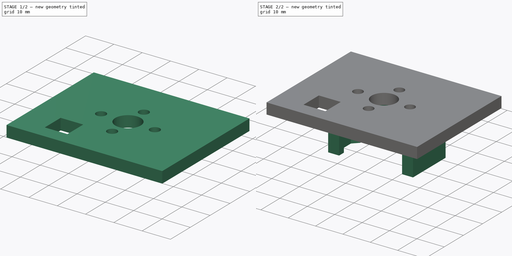
[diagram: build sequence overview — one tinted view per stage of 2, left to right]
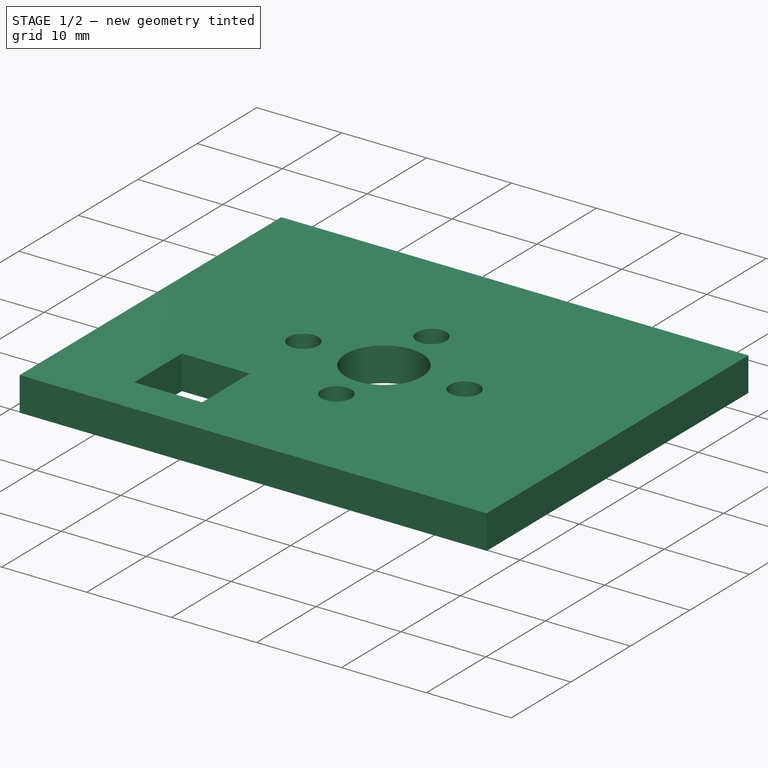
[diagram: stage 1 of 2 — iso view after this stage's code; geometry added in this stage tinted green]
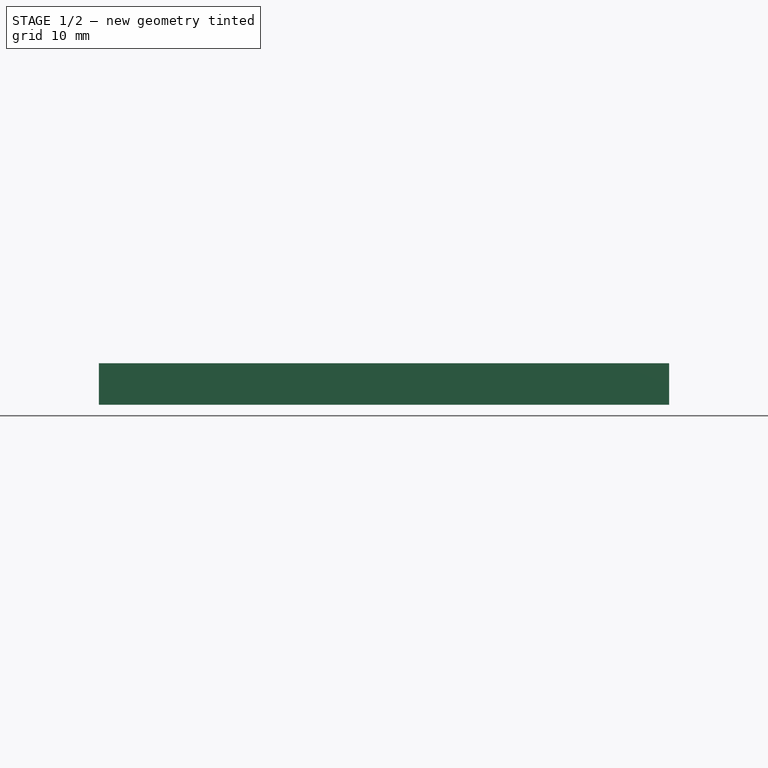
[diagram: stage 1 of 2 — front view after this stage's code; geometry added in this stage tinted green]
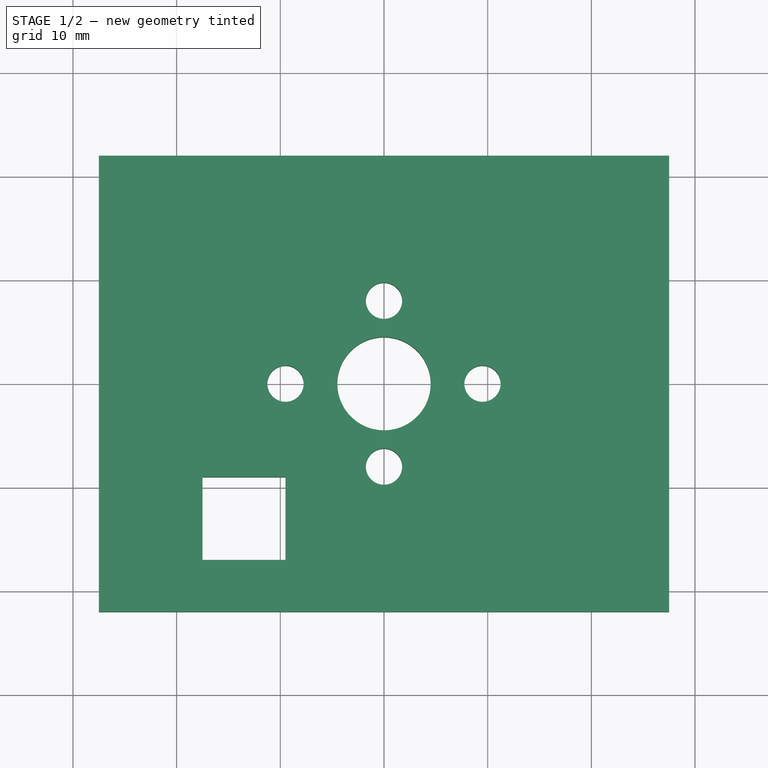
[diagram: stage 1 of 2 — top view after this stage's code; geometry added in this stage tinted green]
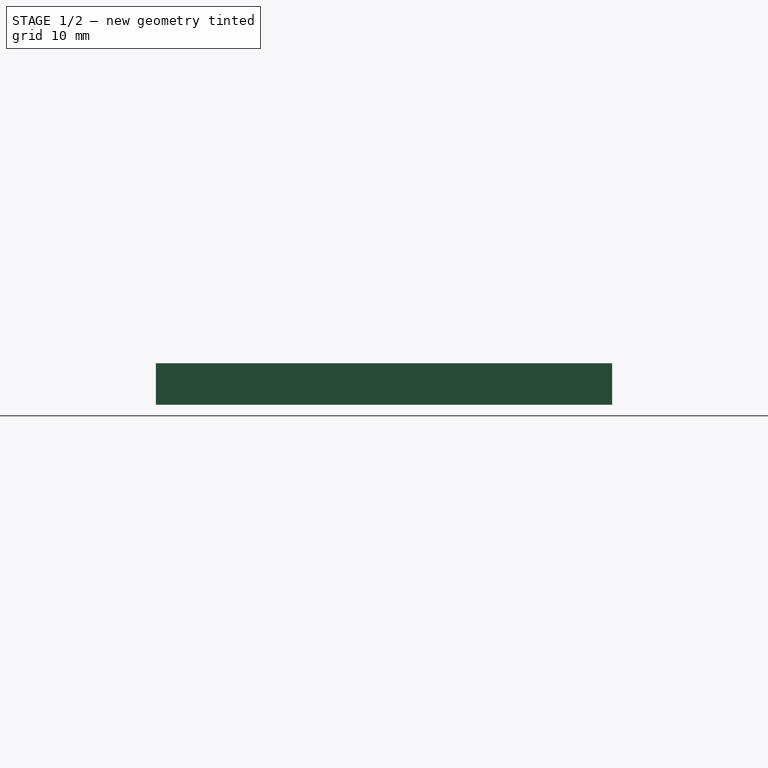
[diagram: stage 1 of 2 — right view after this stage's code; geometry added in this stage tinted green]
FCSTD DOCUMENT  (FreeCAD 0.19R)
Label: motor_mount
License: All rights reserved
LicenseURL: http://en.wikipedia.org/wiki/All_rights_reserved
objects: Sketcher::SketchObject×2, PartDesign::Pad×2, PartDesign::Body×1
note: 7 computed .brp shape members not serialized (recipe doc carries the construction recipe); baked Part::Feature solids carry a one-line shape summary decoded from their .brp

FEATURE [Sketcher::SketchObject] Sketch
  FullyConstrained = true
  MapMode = 5
  Support = -> [XY_Plane]
  sketch-geometry (13):
    g0: LineSegment StartX=-27.5 StartY=22 StartZ=0 EndX=27.5 EndY=22 EndZ=0
    g1: LineSegment StartX=27.5 StartY=22 StartZ=0 EndX=27.5 EndY=-22 EndZ=0
    g2: LineSegment StartX=27.5 StartY=-22 StartZ=0 EndX=-27.5 EndY=-22 EndZ=0
    g3: LineSegment StartX=-27.5 StartY=-22 StartZ=0 EndX=-27.5 EndY=22 EndZ=0
    g4: LineSegment StartX=-17.5 StartY=-9 StartZ=0 EndX=-9.5 EndY=-9 EndZ=0
    g5: LineSegment StartX=-9.5 StartY=-9 StartZ=0 EndX=-9.5 EndY=-17 EndZ=0
    g6: LineSegment StartX=-9.5 StartY=-17 StartZ=0 EndX=-17.5 EndY=-17 EndZ=0
    g7: LineSegment StartX=-17.5 StartY=-17 StartZ=0 EndX=-17.5 EndY=-9 EndZ=0
    g8: Circle CenterX=-9.5 CenterY=0 CenterZ=0 NormalX=0 NormalY=0 NormalZ=1 AngleXU=0 Radius=1.75
    g9: Circle CenterX=0 CenterY=8 CenterZ=0 NormalX=0 NormalY=0 NormalZ=1 AngleXU=0 Radius=1.75
    g10: Circle CenterX=9.5 CenterY=0 CenterZ=0 NormalX=0 NormalY=0 NormalZ=1 AngleXU=0 Radius=1.75
    g11: Circle CenterX=0 CenterY=-8 CenterZ=0 NormalX=0 NormalY=0 NormalZ=1 AngleXU=0 Radius=1.75
    g12: Circle CenterX=0 CenterY=0 CenterZ=0 NormalX=0 NormalY=0 NormalZ=1 AngleXU=0 Radius=4.5
  constraints (34):
    c: Coincident(g0,g1)
    c: Coincident(g1,g2)
    c: Coincident(g2,g3)
    c: Coincident(g3,g0)
    c: Horizontal(g0)
    c: Vertical(g3)
    c: DistanceY(g1,g1) = 44
    c: DistanceX(g0,g0) = 55
    c: Symmetric(g2,g1,g-2)
    c: Symmetric(g1,g0,g-1)
    c: Coincident(g4,g5)
    c: Coincident(g5,g6)
    c: Coincident(g6,g7)
    c: Coincident(g7,g4)
    c: Horizontal(g4)
    c: Horizontal(g6)
    c: Vertical(g5)
    c: Vertical(g7)
    c: DistanceX(g4,g4) = 8
    c: DistanceY(g5,g5) = 8
    c: DistanceX(g2,g6) = 10
    c: DistanceY(g2,g6) = 5
    c: Equal(g11,g10)
    c: Equal(g10,g9)
    c: Equal(g9,g8)
    c: Diameter(g10) = 3.5
    c: PointOnObject(g11,g-2)
    c: PointOnObject(g10,g-1)
    c: Symmetric(g8,g10,g-2)
    c: Symmetric(g11,g9,g-1)
    c: DistanceX(g8,g10) = 19
    c: DistanceY(g11,g9) = 16
    c: Coincident(g12,g-1)
    c: Diameter(g12) = 9
FEATURE [PartDesign::Pad] Pad
  Direction = (1,1,1)
  Length = 4
  Length2 = 100
  Profile = -> Sketch
  Type = 0
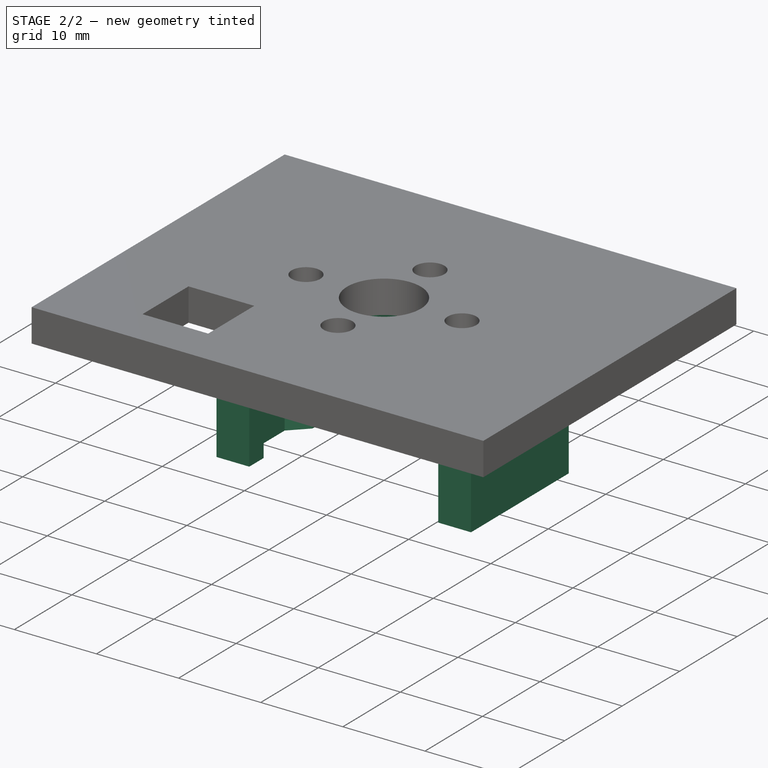
[diagram: stage 2 of 2 — iso view after this stage's code; geometry added in this stage tinted green]
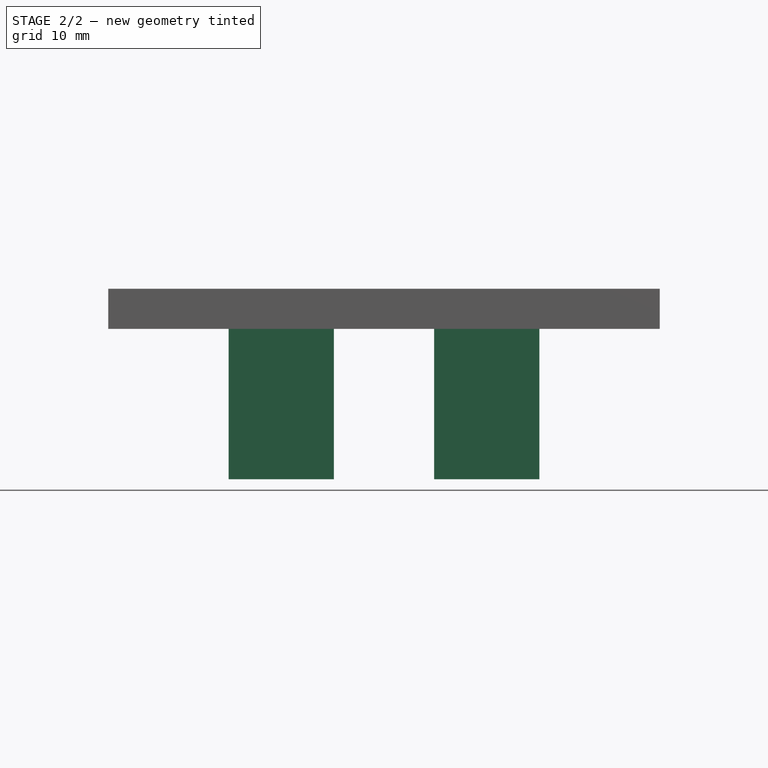
[diagram: stage 2 of 2 — front view after this stage's code; geometry added in this stage tinted green]
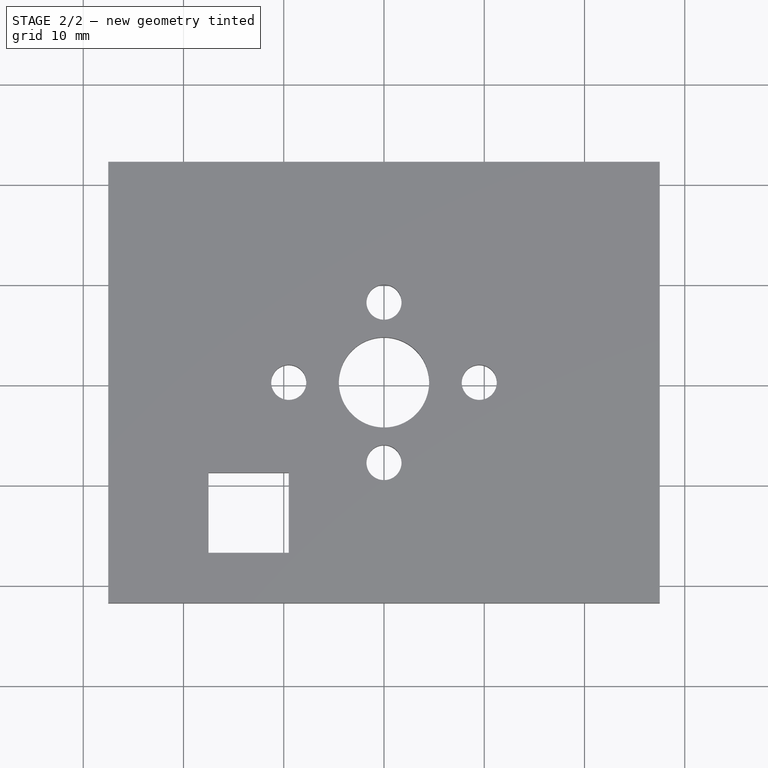
[diagram: stage 2 of 2 — top view after this stage's code; geometry added in this stage tinted green]
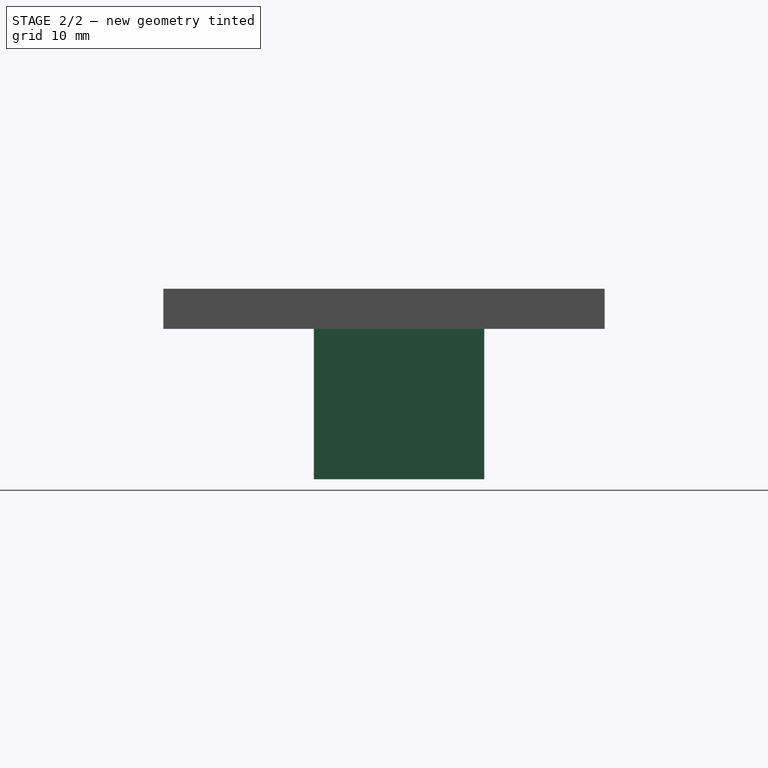
[diagram: stage 2 of 2 — right view after this stage's code; geometry added in this stage tinted green]
FEATURE [Sketcher::SketchObject] Sketch001
  ExternalGeometry = -> [Pad]
  FullyConstrained = true
  MapMode = 5
  Placement = pos=(0,0,0) rot=(1,0,0;3.14159rad)
  Support = -> [Pad]
  sketch-geometry (20):
    g0: LineSegment StartX=-15.5 StartY=7 StartZ=0 EndX=-11.5 EndY=7 EndZ=0
    g1: LineSegment StartX=11.5 StartY=7 StartZ=0 EndX=15.5 EndY=7 EndZ=0
    g2: LineSegment StartX=15.5 StartY=7 StartZ=0 EndX=15.5 EndY=-10 EndZ=0
    g3: LineSegment StartX=-15.5 StartY=-10 StartZ=0 EndX=-15.5 EndY=7 EndZ=0
    g4: LineSegment StartX=11.5 StartY=7 StartZ=0 EndX=11.5 EndY=4.5 EndZ=0
    g5: LineSegment StartX=11.5 StartY=4.5 StartZ=0 EndX=13.5 EndY=2.5 EndZ=0
    g6: LineSegment StartX=13.5 StartY=2.5 StartZ=0 EndX=13.5 EndY=-2 EndZ=0
    g7: LineSegment StartX=13.5 StartY=-2 StartZ=0 EndX=11.5 EndY=-4 EndZ=0
    g8: LineSegment StartX=11.5 StartY=-4 StartZ=0 EndX=11.5 EndY=-6 EndZ=0
    g9: LineSegment StartX=11.5 StartY=-6 StartZ=0 EndX=5 EndY=-6 EndZ=0
    g10: LineSegment StartX=5 StartY=-6 StartZ=0 EndX=5 EndY=-10 EndZ=0
    g11: LineSegment StartX=5 StartY=-10 StartZ=0 EndX=15.5 EndY=-10 EndZ=0
    g12: LineSegment StartX=-11.5 StartY=7 StartZ=0 EndX=-11.5 EndY=4.5 EndZ=0
    g13: LineSegment StartX=-11.5 StartY=4.5 StartZ=0 EndX=-13.5 EndY=2.5 EndZ=0
    g14: LineSegment StartX=-13.5 StartY=2.5 StartZ=0 EndX=-13.5 EndY=-2 EndZ=0
    g15: LineSegment StartX=-13.5 StartY=-2 StartZ=0 EndX=-11.5 EndY=-4 EndZ=0
    g16: LineSegment StartX=-11.5 StartY=-4 StartZ=0 EndX=-11.5 EndY=-6 EndZ=0
    g17: LineSegment StartX=-11.5 StartY=-6 StartZ=0 EndX=-5 EndY=-6 EndZ=0
    g18: LineSegment StartX=-5 StartY=-6 StartZ=0 EndX=-5 EndY=-10 EndZ=0
    g19: LineSegment StartX=-5 StartY=-10 StartZ=0 EndX=-15.5 EndY=-10 EndZ=0
  constraints (55):
    c: Coincident(g1,g2)
    c: Coincident(g3,g0)
    c: Vertical(g3)
    c: Horizontal(g0)
    c: Symmetric(g3,g2,g-2)
    c: DistanceY(g-3,g2) = 12
    c: DistanceX(g2,g-3) = 12
    c: Horizontal(g1)
    c: Equal(g1,g0)
    c: DistanceX(g1,g1) = 4
    c: Coincident(g1,g4)
    c: Vertical(g4)
    c: Coincident(g4,g5)
    c: Coincident(g5,g6)
    c: Vertical(g6)
    c: Coincident(g6,g7)
    c: Coincident(g7,g8)
    c: Coincident(g8,g9)
    c: Horizontal(g9)
    c: Coincident(g9,g10)
    c: Vertical(g10)
    c: Coincident(g10,g11)
    c: Coincident(g11,g2)
    c: Horizontal(g11)
    c: Coincident(g0,g12)
    c: Vertical(g12)
    c: Coincident(g12,g13)
    c: Coincident(g13,g14)
    c: Vertical(g14)
    c: Coincident(g14,g15)
    c: Coincident(g15,g16)
    c: Coincident(g16,g17)
    c: Horizontal(g17)
    c: Coincident(g17,g18)
    c: Vertical(g18)
    c: Coincident(g18,g19)
    c: Coincident(g19,g3)
    c: Horizontal(g19)
    c: Equal(g12,g4)
    c: Equal(g6,g14)
    c: Symmetric(g13,g5,g-2)
    c: Symmetric(g0,g1,g-2)
    c: DistanceY(g3,g3) = 17
    c: Symmetric(g15,g7,g-2)
    c: Vertical(g8)
    c: Vertical(g16)
    c: Symmetric(g17,g9,g-2)
    c: DistanceY(g18,g18) = 4
    c: DistanceX(g18,g10) = 10
    c: DistanceX(g14,g6) = 27
    c: DistanceY(g12,g12) = 2.5
    c: Angle(g13,g-2) = 0.785398
    c: Angle(g-2,g15) = 0.785398
    c: DistanceY(g14,g14) = 4.5
    c: DistanceX(g3,g16) = 4
FEATURE [PartDesign::Pad] Pad001
  BaseFeature = -> Pad
  Direction = (1,1,1)
  Length = 15
  Length2 = 100
  Profile = -> Sketch001
  Type = 0
FEATURE [PartDesign::Body] Body
  Group = -> [Sketch,Pad,Sketch001,Pad001]
  Origin = -> Origin
  Tip = -> Pad001
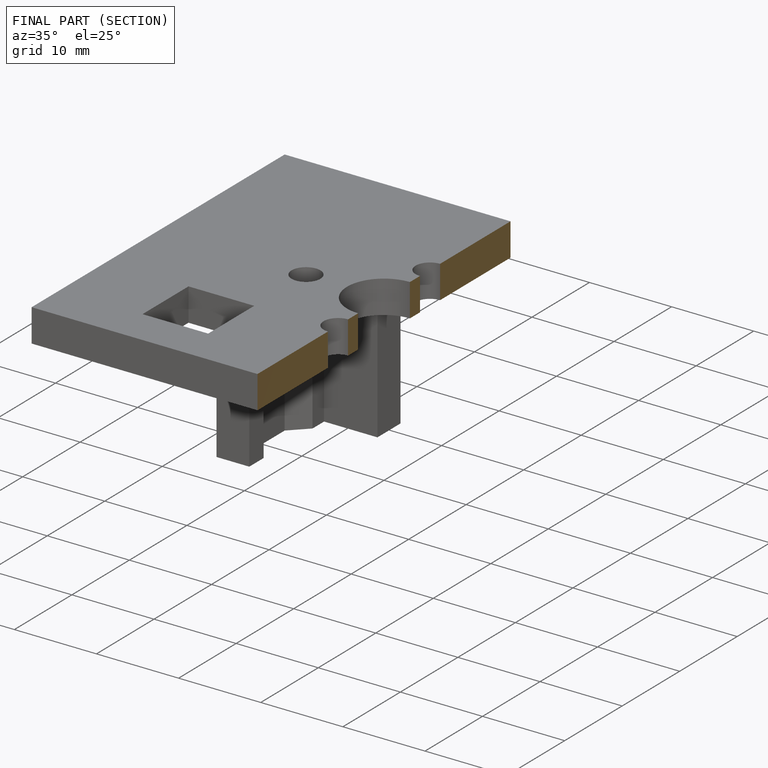
[diagram: finished part — half-section view (interior)]
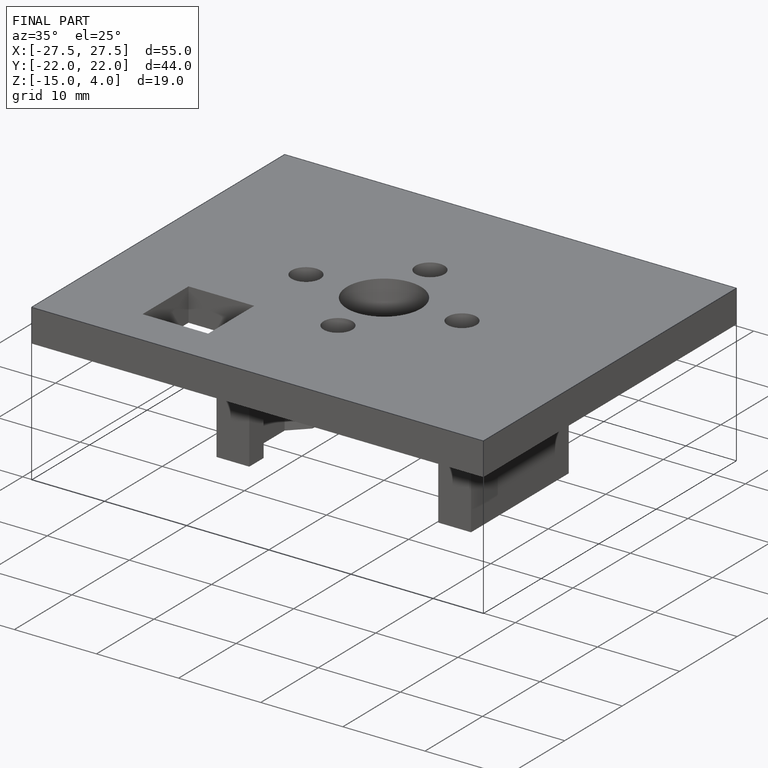
[diagram: finished part — iso view with bounding-box wireframe]
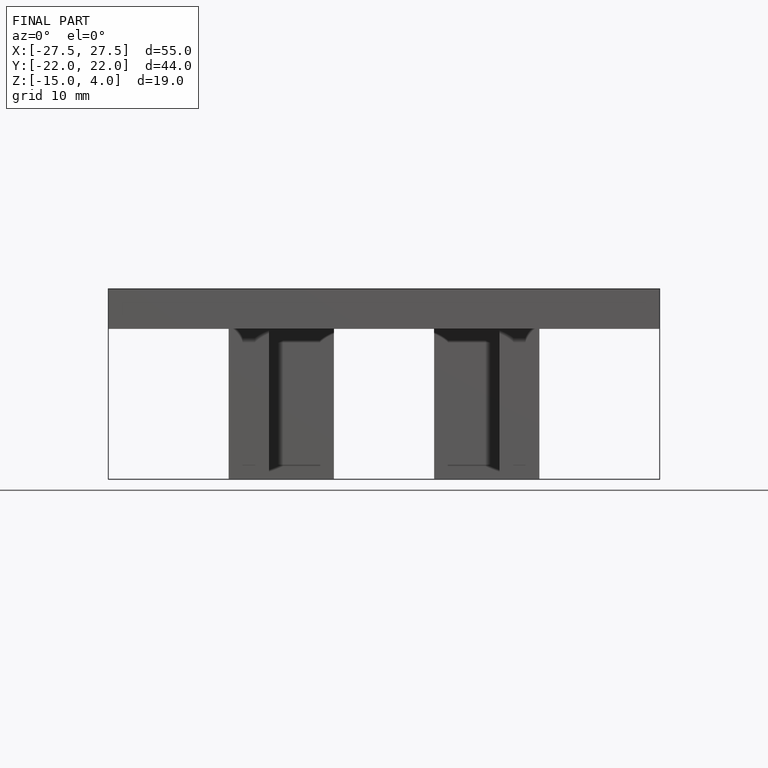
[diagram: finished part — front view with bounding-box wireframe]
